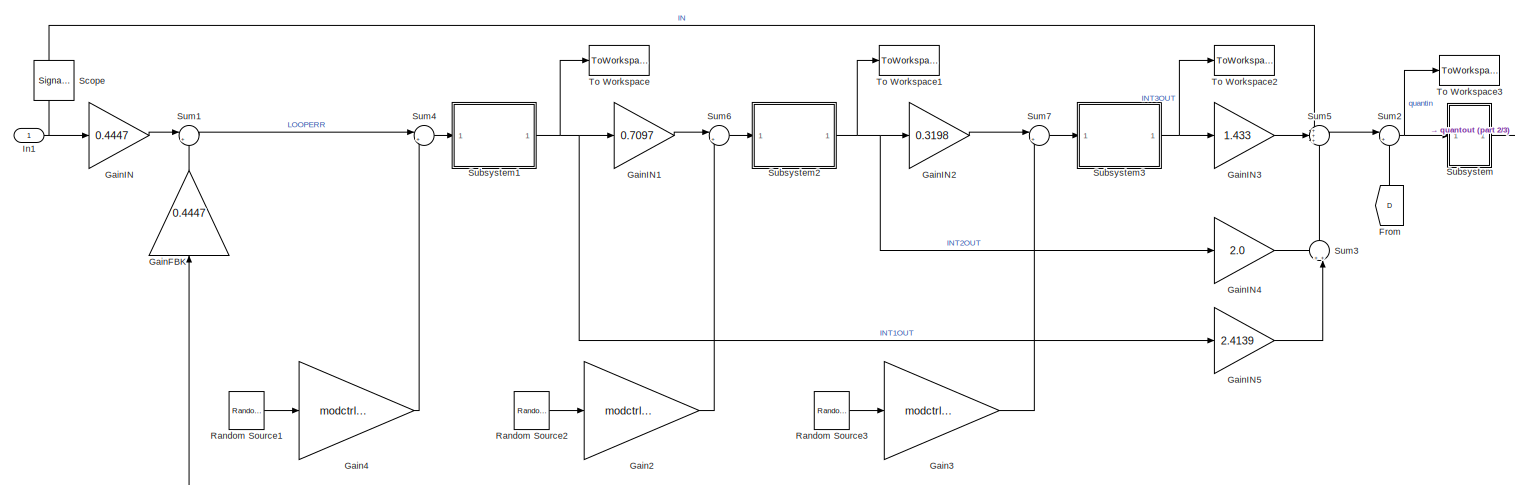
[diagram: root canvas - part 1/3, full width, top band]
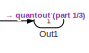
[diagram: root canvas - part 2/3, top right region]
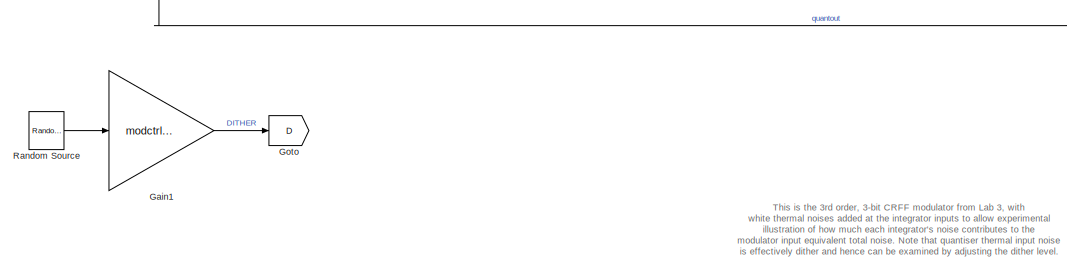
[diagram: root canvas - part 3/3, bottom center region]
MODEL slx_3284241911f7
KIND model
BLOCK [From] From
  GotoTag = D
BLOCK [Gain] Gain1
  AttributesFormatString = Dither level adjust
  Gain = modctrl.dgain1
  OutDataTypeStr = Inherit: Inherit via internal rule
  ParamDataTypeStr = Inherit: Inherit via internal rule
  SaturateOnIntegerOverflow = off
BLOCK [Gain] Gain2
  Gain = modctrl.ngain2
  OutDataTypeStr = Inherit: Inherit via internal rule
  ParamDataTypeStr = Inherit: Inherit via internal rule
  SaturateOnIntegerOverflow = off
BLOCK [Gain] Gain3
  Gain = modctrl.ngain3
  OutDataTypeStr = Inherit: Inherit via internal rule
  ParamDataTypeStr = Inherit: Inherit via internal rule
  SaturateOnIntegerOverflow = off
BLOCK [Gain] Gain4
  Gain = modctrl.ngain1
  OutDataTypeStr = Inherit: Inherit via internal rule
  ParamDataTypeStr = Inherit: Inherit via internal rule
  SaturateOnIntegerOverflow = off
BLOCK [Gain] GainFBK
  Gain = 0.4447
  OutDataTypeStr = Inherit: Inherit via internal rule
  ParamDataTypeStr = Inherit: Inherit via internal rule
  SaturateOnIntegerOverflow = off
BLOCK [Gain] GainIN
  Gain = 0.4447
  OutDataTypeStr = Inherit: Inherit via internal rule
  ParamDataTypeStr = Inherit: Inherit via internal rule
  SaturateOnIntegerOverflow = off
BLOCK [Gain] GainIN1
  Gain = 0.7097
  OutDataTypeStr = Inherit: Inherit via internal rule
  ParamDataTypeStr = Inherit: Inherit via internal rule
  SaturateOnIntegerOverflow = off
BLOCK [Gain] GainIN2
  Gain = 0.3198
  OutDataTypeStr = Inherit: Inherit via internal rule
  ParamDataTypeStr = Inherit: Inherit via internal rule
  SaturateOnIntegerOverflow = off
BLOCK [Gain] GainIN3
  Gain = 1.433
  OutDataTypeStr = Inherit: Inherit via internal rule
  ParamDataTypeStr = Inherit: Inherit via internal rule
  SaturateOnIntegerOverflow = off
BLOCK [Gain] GainIN4
  Gain = 2.0
  OutDataTypeStr = Inherit: Inherit via internal rule
  ParamDataTypeStr = Inherit: Inherit via internal rule
  SaturateOnIntegerOverflow = off
BLOCK [Gain] GainIN5
  Gain = 2.4139
  OutDataTypeStr = Inherit: Inherit via internal rule
  ParamDataTypeStr = Inherit: Inherit via internal rule
  SaturateOnIntegerOverflow = off
BLOCK [Goto] Goto
  GotoTag = D
BLOCK [Inport] In1
  IconDisplay = Port number
BLOCK [Outport] Out1
  IconDisplay = Port number
BLOCK [Reference] Random Source  REF=dspsrcs4/Random
Source
  AttributesFormatString = Dither source
  CltLength = 12
  DataType = Double
  IsInherit = off
  MaxVal = 1
  MeanVal = 0
  MinVal = -1
  NormMethod = Ziggurat
  OutComplex = Real
  Ports = [0, 1]
  RepMode = Not repeatable
  SampFrame = 1
  SampMode = Discrete
  SampTime = 1/Fs
  SourceBlock = dspsrcs4/Random\nSource
  SourceType = Random Source
  SrcType = Uniform
  UserDataPersistent = on
  VarVal = 1
  rawSeed = 1
BLOCK [Reference] Random Source1  REF=dspsrcs4/Random
Source
  AttributesFormatString = INT1 noise
  CltLength = 12
  DataType = Double
  IsInherit = off
  MaxVal = 1
  MeanVal = 0
  MinVal = -1
  NormMethod = Ziggurat
  OutComplex = Real
  Ports = [0, 1]
  RepMode = Not repeatable
  SampFrame = 1
  SampMode = Discrete
  SampTime = 1/Fs
  SourceBlock = dspsrcs4/Random\nSource
  SourceType = Random Source
  SrcType = Uniform
  UserDataPersistent = on
  VarVal = 1
  rawSeed = 1
BLOCK [Reference] Random Source2  REF=dspsrcs4/Random
Source
  AttributesFormatString = INT1 noise
  CltLength = 12
  DataType = Double
  IsInherit = off
  MaxVal = 1
  MeanVal = 0
  MinVal = -1
  NormMethod = Ziggurat
  OutComplex = Real
  Ports = [0, 1]
  RepMode = Not repeatable
  SampFrame = 1
  SampMode = Discrete
  SampTime = 1/Fs
  SourceBlock = dspsrcs4/Random\nSource
  SourceType = Random Source
  SrcType = Uniform
  UserDataPersistent = on
  VarVal = 1
  rawSeed = 1
BLOCK [Reference] Random Source3  REF=dspsrcs4/Random
Source
  AttributesFormatString = INT1 noise
  CltLength = 12
  DataType = Double
  IsInherit = off
  MaxVal = 1
  MeanVal = 0
  MinVal = -1
  NormMethod = Ziggurat
  OutComplex = Real
  Ports = [0, 1]
  RepMode = Not repeatable
  SampFrame = 1
  SampMode = Discrete
  SampTime = 1/Fs
  SourceBlock = dspsrcs4/Random\nSource
  SourceType = Random Source
  SrcType = Uniform
  UserDataPersistent = on
  VarVal = 1
  rawSeed = 1
BLOCK [SignalViewerScope] Scope
  IOType = viewer
  MaxDataPoints = 7500
  NumInputPorts = 4
  Ports = []
  RefreshTime = 0.035000
  ShowDataMarkers = off
  ShowLegends = off
  YMax = 5~5~5~5
  YMin = -5~-5~-5~-5
  ZoomMode = xonly
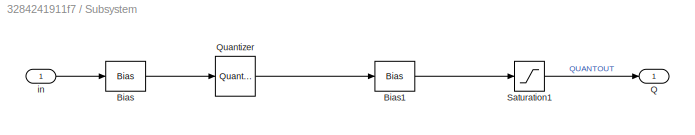
BLOCK [SubSystem] Subsystem
  AttributesFormatString = 3-bit quantiser
  FunctionWithSeparateData = off
  MaskHideContents = off
  MinAlgLoopOccurrences = off
  Opaque = off
  Ports = [1, 1]
  PropExecContextOutsideSubsystem = off
  RTWSystemCode = Auto
  RequestExecContextInheritance = off
BLOCK [Bias] Subsystem/Bias
  AttributesFormatString = Need offset to give\nMID-RISE quantiser
  Bias = 1/7
  SaturateOnIntegerOverflow = off
BLOCK [Bias] Subsystem/Bias1
  Bias = -1/7
  SaturateOnIntegerOverflow = off
BLOCK [Outport] Subsystem/Q
  IconDisplay = Port number
BLOCK [Quantizer] Subsystem/Quantizer
  LinearizeAsGain = off
  QuantizationInterval = 2/7
BLOCK [Saturate] Subsystem/Saturation1
  AttributesFormatString = Limit quantiser\noutput to +/-1
  InputPortMap = u0
  LowerLimit = -1
  Ports = [1, 1]
  UpperLimit = 1
BLOCK [Inport] Subsystem/in
  IconDisplay = Port number
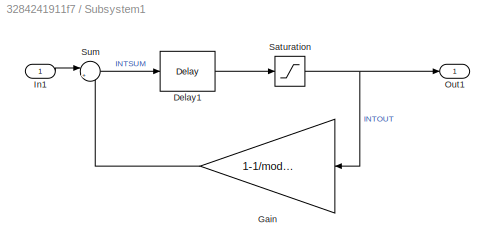
BLOCK [SubSystem] Subsystem1
  AttributesFormatString = Leaky delaying integrator
  FunctionWithSeparateData = off
  MaskHideContents = off
  MinAlgLoopOccurrences = off
  Opaque = off
  Ports = [1, 1]
  PropExecContextOutsideSubsystem = off
  RTWSystemCode = Auto
  RequestExecContextInheritance = off
BLOCK [Reference] Subsystem1/Delay1  REF=dspsigops/Delay
  Ports = [1, 1]
  SourceBlock = dspsigops/Delay
  SourceType = Delay
  delay = 1
  dif_ic_for_ch = off
  dif_ic_for_dly = off
  dly_unit = Samples
  ic = 0
  ic_detail = off
  reset_popup = None
BLOCK [Gain] Subsystem1/Gain
  AttributesFormatString = Integrator leakage
  Gain = 1-1/modctrl.igain1
  OutDataTypeStr = Inherit: Inherit via internal rule
  ParamDataTypeStr = Inherit: Inherit via internal rule
  SaturateOnIntegerOverflow = off
BLOCK [Inport] Subsystem1/In1
  IconDisplay = Port number
BLOCK [Outport] Subsystem1/Out1
  IconDisplay = Port number
BLOCK [Saturate] Subsystem1/Saturation
  InputPortMap = u0
  LowerLimit = -(modctrl.isat1)
  Ports = [1, 1]
  UpperLimit = modctrl.isat1
BLOCK [Sum] Subsystem1/Sum
  AttributesFormatString = Integrator summer
  IconShape = round
  InputSameDT = off
  Inputs = |++
  OutDataTypeStr = Inherit: Inherit via internal rule
  Ports = [2, 1]
  SaturateOnIntegerOverflow = off
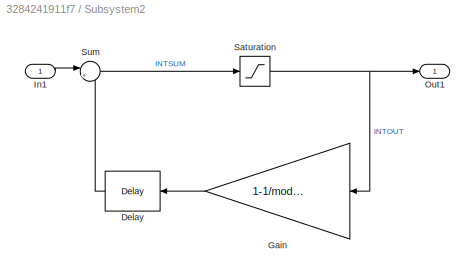
BLOCK [SubSystem] Subsystem2
  AttributesFormatString = Leaky delayless integrator
  FunctionWithSeparateData = off
  MaskHideContents = off
  MinAlgLoopOccurrences = off
  Opaque = off
  Ports = [1, 1]
  PropExecContextOutsideSubsystem = off
  RTWSystemCode = Auto
  RequestExecContextInheritance = off
BLOCK [Reference] Subsystem2/Delay  REF=dspsigops/Delay
  Ports = [1, 1]
  SourceBlock = dspsigops/Delay
  SourceType = Delay
  delay = 1
  dif_ic_for_ch = off
  dif_ic_for_dly = off
  dly_unit = Samples
  ic = 0
  ic_detail = off
  reset_popup = None
BLOCK [Gain] Subsystem2/Gain
  AttributesFormatString = Integrator leakage
  Gain = 1-1/modctrl.igain2
  OutDataTypeStr = Inherit: Inherit via internal rule
  ParamDataTypeStr = Inherit: Inherit via internal rule
  SaturateOnIntegerOverflow = off
BLOCK [Inport] Subsystem2/In1
  IconDisplay = Port number
BLOCK [Outport] Subsystem2/Out1
  IconDisplay = Port number
BLOCK [Saturate] Subsystem2/Saturation
  InputPortMap = u0
  LowerLimit = -(modctrl.isat2)
  Ports = [1, 1]
  UpperLimit = modctrl.isat2
BLOCK [Sum] Subsystem2/Sum
  AttributesFormatString = Integrator summer
  IconShape = round
  InputSameDT = off
  Inputs = |++
  OutDataTypeStr = Inherit: Inherit via internal rule
  Ports = [2, 1]
  SaturateOnIntegerOverflow = off
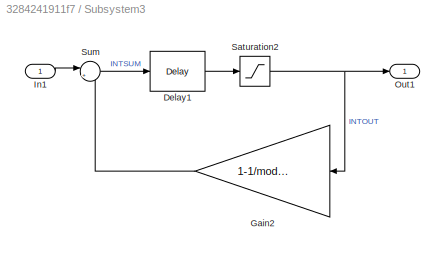
BLOCK [SubSystem] Subsystem3
  AttributesFormatString = Leaky delaying integrator
  FunctionWithSeparateData = off
  MaskHideContents = off
  MinAlgLoopOccurrences = off
  Opaque = off
  Ports = [1, 1]
  PropExecContextOutsideSubsystem = off
  RTWSystemCode = Auto
  RequestExecContextInheritance = off
BLOCK [Reference] Subsystem3/Delay1  REF=dspsigops/Delay
  Ports = [1, 1]
  SourceBlock = dspsigops/Delay
  SourceType = Delay
  delay = 1
  dif_ic_for_ch = off
  dif_ic_for_dly = off
  dly_unit = Samples
  ic = 0
  ic_detail = off
  reset_popup = None
BLOCK [Gain] Subsystem3/Gain2
  AttributesFormatString = Integrator leakage
  Gain = 1-1/modctrl.igain3
  OutDataTypeStr = Inherit: Inherit via internal rule
  ParamDataTypeStr = Inherit: Inherit via internal rule
  SaturateOnIntegerOverflow = off
BLOCK [Inport] Subsystem3/In1
  IconDisplay = Port number
BLOCK [Outport] Subsystem3/Out1
  IconDisplay = Port number
BLOCK [Saturate] Subsystem3/Saturation2
  InputPortMap = u0
  LowerLimit = -(modctrl.isat3)
  Ports = [1, 1]
  UpperLimit = modctrl.isat3
BLOCK [Sum] Subsystem3/Sum
  AttributesFormatString = Integrator summer
  IconShape = round
  InputSameDT = off
  Inputs = |++
  OutDataTypeStr = Inherit: Inherit via internal rule
  Ports = [2, 1]
  SaturateOnIntegerOverflow = off
BLOCK [Sum] Sum1
  AttributesFormatString = Modulator input\nloop servo error (input - fbk)
  IconShape = round
  InputSameDT = off
  Inputs = |+-
  OutDataTypeStr = Inherit: Inherit via internal rule
  Ports = [2, 1]
  SaturateOnIntegerOverflow = off
BLOCK [Sum] Sum2
  IconShape = round
  InputSameDT = off
  Inputs = |++
  OutDataTypeStr = Inherit: Inherit via internal rule
  Ports = [2, 1]
  SaturateOnIntegerOverflow = off
BLOCK [Sum] Sum3
  IconShape = round
  InputSameDT = off
  Inputs = ++|
  OutDataTypeStr = Inherit: Inherit via internal rule
  Ports = [2, 1]
  SaturateOnIntegerOverflow = off
BLOCK [Sum] Sum4
  IconShape = round
  InputSameDT = off
  Inputs = |++
  OutDataTypeStr = Inherit: Inherit via internal rule
  Ports = [2, 1]
  SaturateOnIntegerOverflow = off
BLOCK [Sum] Sum5
  IconShape = round
  InputSameDT = off
  Inputs = +++
  OutDataTypeStr = Inherit: Inherit via internal rule
  Ports = [3, 1]
  SaturateOnIntegerOverflow = off
BLOCK [Sum] Sum6
  IconShape = round
  InputSameDT = off
  Inputs = |++
  OutDataTypeStr = Inherit: Inherit via internal rule
  Ports = [2, 1]
  SaturateOnIntegerOverflow = off
BLOCK [Sum] Sum7
  IconShape = round
  InputSameDT = off
  Inputs = |++
  OutDataTypeStr = Inherit: Inherit via internal rule
  Ports = [2, 1]
  SaturateOnIntegerOverflow = off
BLOCK [ToWorkspace] To Workspace
  MaxDataPoints = inf
  Ports = [1]
  SampleTime = -1
  VariableName = INT1OUT
BLOCK [ToWorkspace] To Workspace1
  MaxDataPoints = inf
  Ports = [1]
  SampleTime = -1
  VariableName = INT2OUT
BLOCK [ToWorkspace] To Workspace2
  MaxDataPoints = inf
  Ports = [1]
  SampleTime = -1
  VariableName = INT3OUT
BLOCK [ToWorkspace] To Workspace3
  MaxDataPoints = inf
  Ports = [1]
  SampleTime = -1
  VariableName = Qin
ANNOTATION (root): This is the 3rd order, 3-bit CRFF modulator from Lab 3, with white thermal noises added at the integrator inputs to allow experimental illustration of how much each integrator's noise contributes to the modulator input equivalent total noise. Note that quantiser thermal input noise is effectively dither and hence can be examined by adjusting the dither level.
LINE From:1 -> Sum2:2
LINE Gain1:1 -> Goto:1
LINE Gain2:1 -> Sum6:2
LINE Gain3:1 -> Sum7:2
LINE Gain4:1 -> Sum4:2
LINE GainFBK:1 -> Sum1:2
LINE GainIN1:1 -> Sum6:1
LINE GainIN2:1 -> Sum7:1
LINE GainIN3:1 -> Sum5:2
LINE GainIN4:1 -> Sum3:1
LINE GainIN5:1 -> Sum3:2
LINE GainIN:1 -> Sum1:1
NET In1:1 -> GainIN:1, Sum5:1
LINE Random Source1:1 -> Gain4:1
LINE Random Source2:1 -> Gain2:1
LINE Random Source3:1 -> Gain3:1
LINE Random Source:1 -> Gain1:1
LINE Subsystem/Bias1:1 -> Subsystem/Saturation1:1
LINE Subsystem/Bias:1 -> Subsystem/Quantizer:1
LINE Subsystem/Quantizer:1 -> Subsystem/Bias1:1
LINE Subsystem/Saturation1:1 -> Subsystem/Q:1
LINE Subsystem/in:1 -> Subsystem/Bias:1
LINE Subsystem1/Delay1:1 -> Subsystem1/Saturation:1
LINE Subsystem1/Gain:1 -> Subsystem1/Sum:2
LINE Subsystem1/In1:1 -> Subsystem1/Sum:1
NET Subsystem1/Saturation:1 -> Subsystem1/Gain:1, Subsystem1/Out1:1
LINE Subsystem1/Sum:1 -> Subsystem1/Delay1:1
NET Subsystem1:1 -> GainIN1:1, GainIN5:1, To Workspace:1
LINE Subsystem2/Delay:1 -> Subsystem2/Sum:2
LINE Subsystem2/Gain:1 -> Subsystem2/Delay:1
LINE Subsystem2/In1:1 -> Subsystem2/Sum:1
NET Subsystem2/Saturation:1 -> Subsystem2/Gain:1, Subsystem2/Out1:1
LINE Subsystem2/Sum:1 -> Subsystem2/Saturation:1
NET Subsystem2:1 -> GainIN2:1, GainIN4:1, To Workspace1:1
LINE Subsystem3/Delay1:1 -> Subsystem3/Saturation2:1
LINE Subsystem3/Gain2:1 -> Subsystem3/Sum:2
LINE Subsystem3/In1:1 -> Subsystem3/Sum:1
NET Subsystem3/Saturation2:1 -> Subsystem3/Gain2:1, Subsystem3/Out1:1
LINE Subsystem3/Sum:1 -> Subsystem3/Delay1:1
NET Subsystem3:1 -> GainIN3:1, To Workspace2:1
NET Subsystem:1 -> GainFBK:1, Out1:1
LINE Sum1:1 -> Sum4:1
NET Sum2:1 -> Subsystem:1, To Workspace3:1
LINE Sum3:1 -> Sum5:3
LINE Sum4:1 -> Subsystem1:1
LINE Sum5:1 -> Sum2:1
LINE Sum6:1 -> Subsystem2:1
LINE Sum7:1 -> Subsystem3:1
note: NET lines group one-source signal fan-out (src -> all destinations, sorted); 1:1 wires keep LINE
